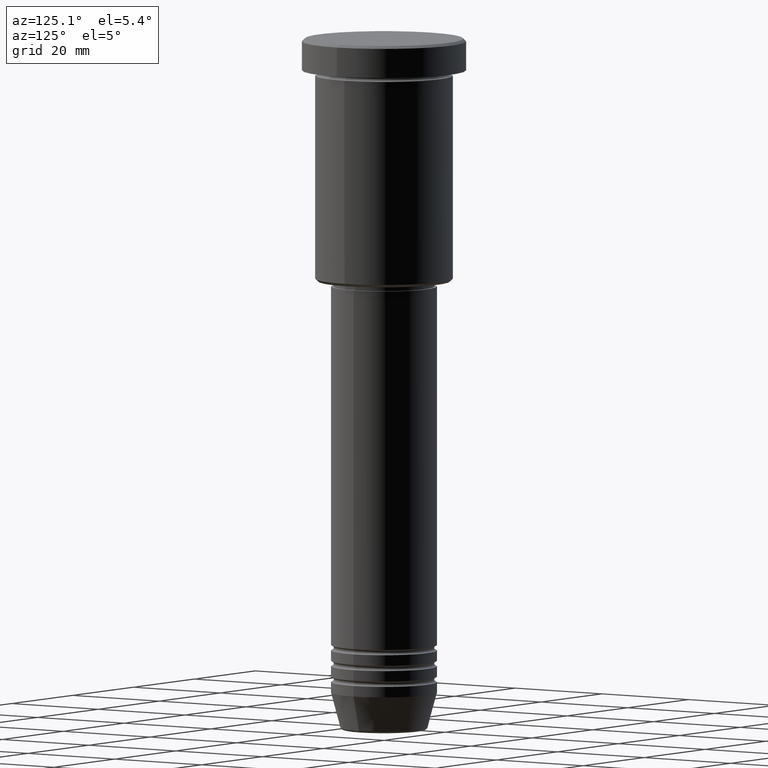
[diagram: clean part render]
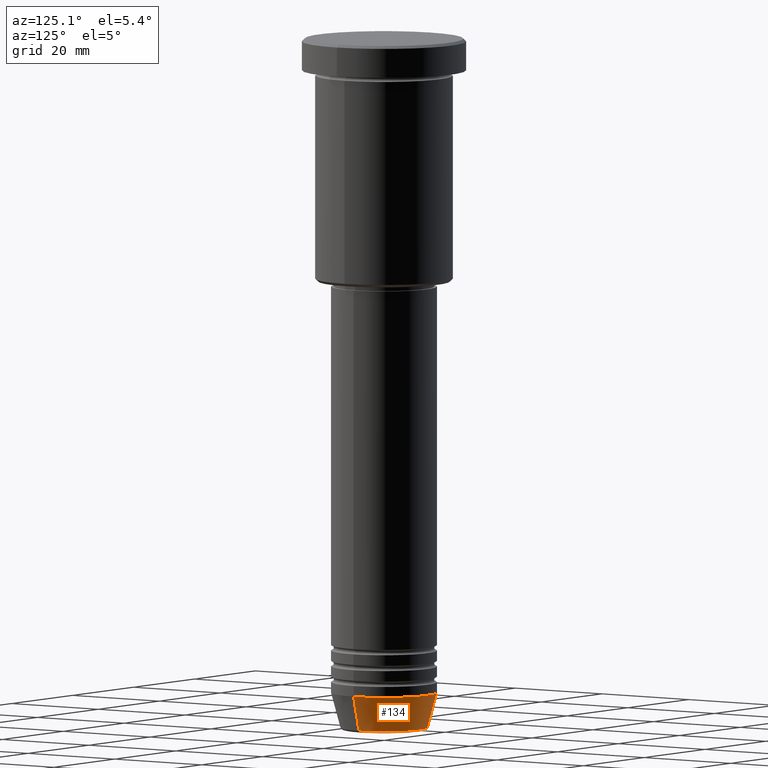
[diagram: same view with one face highlighted and labeled with its STEP entity id]
A machine part, auxiliary view. The second image highlights one B-rep face of the part: STEP entity #134.
In plain terms, the highlighted conical surface has half-angle 15 deg.
Its self-contained STEP definition (entity closure, byte-faithful):
#40 = DIRECTION ( 'NONE',  ( -0.000000000000000000, -0.000000000000000000, 1.000000000000000000 ) ) ;
#46 = CARTESIAN_POINT ( 'NONE',  ( 0.000000000000000000, 0.000000000000000000, -124.0000000000000000 ) ) ;
#49 = AXIS2_PLACEMENT_3D ( 'NONE', #427, #163, #981 ) ;
#134 = ADVANCED_FACE ( 'NONE', ( #995 ), #809, .T. ) ;
#163 = DIRECTION ( 'NONE',  ( -0.000000000000000000, -0.000000000000000000, 1.000000000000000000 ) ) ;
#194 = VECTOR ( 'NONE', #879, 1000.000000000000000 ) ;
#207 = ORIENTED_EDGE ( 'NONE', *, *, #577, .T. ) ;
#219 = CARTESIAN_POINT ( 'NONE',  ( 10.00000000000000000, 0.000000000000000000, -124.0000000000000000 ) ) ;
#224 = CARTESIAN_POINT ( 'NONE',  ( -10.00000000000000000, 1.224646799147353256E-15, -124.0000000000000000 ) ) ;
#240 = DIRECTION ( 'NONE',  ( 1.000000000000000000, 0.000000000000000000, 0.000000000000000000 ) ) ;
#302 = LINE ( 'NONE', #219, #194 ) ;
#332 = CARTESIAN_POINT ( 'NONE',  ( 10.00000000000000000, 0.000000000000000000, -124.0000000000000000 ) ) ;
#377 = DIRECTION ( 'NONE',  ( -0.000000000000000000, -0.000000000000000000, 1.000000000000000000 ) ) ;
#398 = CARTESIAN_POINT ( 'NONE',  ( -8.223655072137191269, 1.115877042642912054E-15, -130.6294095225512422 ) ) ;
#427 = CARTESIAN_POINT ( 'NONE',  ( 0.000000000000000000, 0.000000000000000000, -130.6294095225512422 ) ) ;
#478 = VERTEX_POINT ( 'NONE', #398 ) ;
#518 = EDGE_CURVE ( 'NONE', #680, #756, #1133, .T. ) ;
#541 = EDGE_CURVE ( 'NONE', #566, #680, #302, .T. ) ;
#558 = AXIS2_PLACEMENT_3D ( 'NONE', #717, #377, #1026 ) ;
#561 = CIRCLE ( 'NONE', #49, 8.223655072137191269 ) ;
#566 = VERTEX_POINT ( 'NONE', #778 ) ;
#577 = EDGE_CURVE ( 'NONE', #478, #756, #679, .T. ) ;
#591 = ORIENTED_EDGE ( 'NONE', *, *, #518, .F. ) ;
#595 = DIRECTION ( 'NONE',  ( -0.2588190451025213501, 3.169619151431772337E-17, 0.9659258262890680902 ) ) ;
#657 = EDGE_CURVE ( 'NONE', #566, #478, #561, .T. ) ;
#679 = LINE ( 'NONE', #224, #852 ) ;
#680 = VERTEX_POINT ( 'NONE', #332 ) ;
#717 = CARTESIAN_POINT ( 'NONE',  ( 0.000000000000000000, 0.000000000000000000, -124.0000000000000000 ) ) ;
#744 = ORIENTED_EDGE ( 'NONE', *, *, #541, .F. ) ;
#756 = VERTEX_POINT ( 'NONE', #1010 ) ;
#778 = CARTESIAN_POINT ( 'NONE',  ( 8.223655072137191269, 0.000000000000000000, -130.6294095225512422 ) ) ;
#809 = CONICAL_SURFACE ( 'NONE', #558, 10.00000000000000000, 0.2617993877991500740 ) ;
#821 = EDGE_LOOP ( 'NONE', ( #842, #207, #591, #744 ) ) ;
#842 = ORIENTED_EDGE ( 'NONE', *, *, #657, .T. ) ;
#852 = VECTOR ( 'NONE', #595, 1000.000000000000000 ) ;
#879 = DIRECTION ( 'NONE',  ( 0.2588190451025213501, 0.000000000000000000, 0.9659258262890680902 ) ) ;
#981 = DIRECTION ( 'NONE',  ( 1.000000000000000000, 0.000000000000000000, 0.000000000000000000 ) ) ;
#995 = FACE_OUTER_BOUND ( 'NONE', #821, .T. ) ;
#1010 = CARTESIAN_POINT ( 'NONE',  ( -10.00000000000000000, 1.224646799147353256E-15, -124.0000000000000000 ) ) ;
#1026 = DIRECTION ( 'NONE',  ( 1.000000000000000000, 0.000000000000000000, 0.000000000000000000 ) ) ;
#1133 = CIRCLE ( 'NONE', #1152, 10.00000000000000000 ) ;
#1152 = AXIS2_PLACEMENT_3D ( 'NONE', #46, #40, #240 ) ;